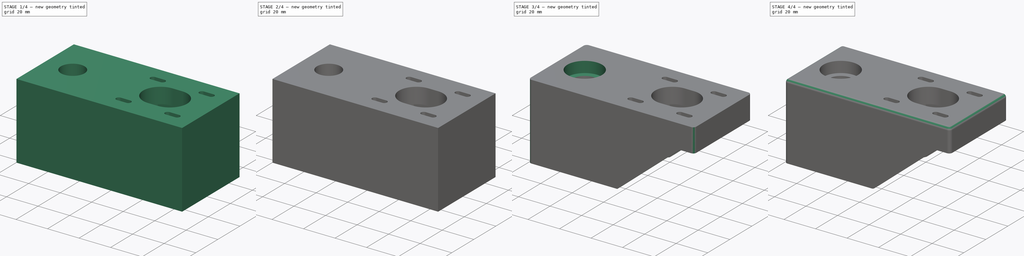
[diagram: build sequence overview — one tinted view per stage of 4, left to right]
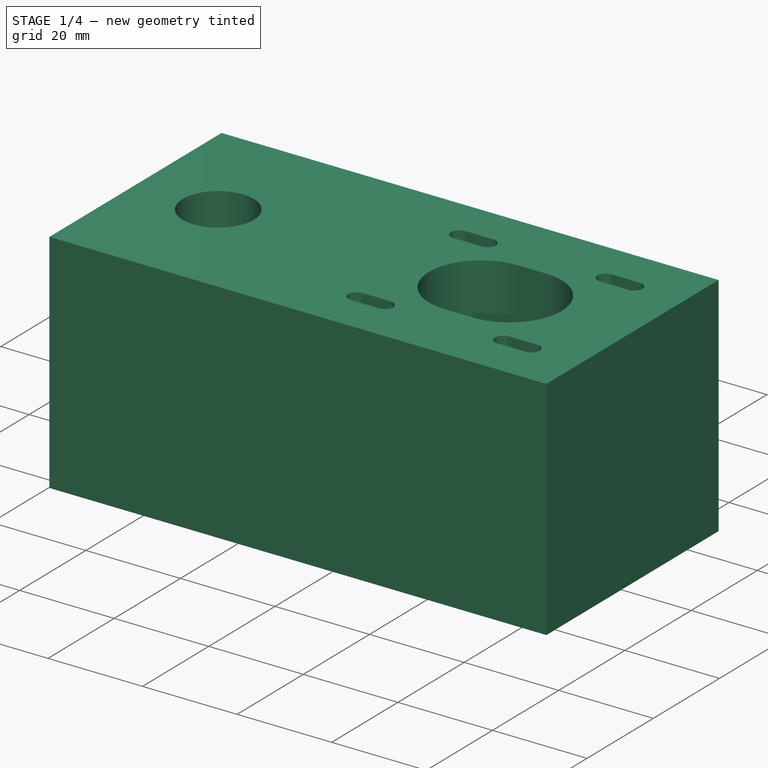
[diagram: stage 1 of 4 — iso view after this stage's code; geometry added in this stage tinted green]
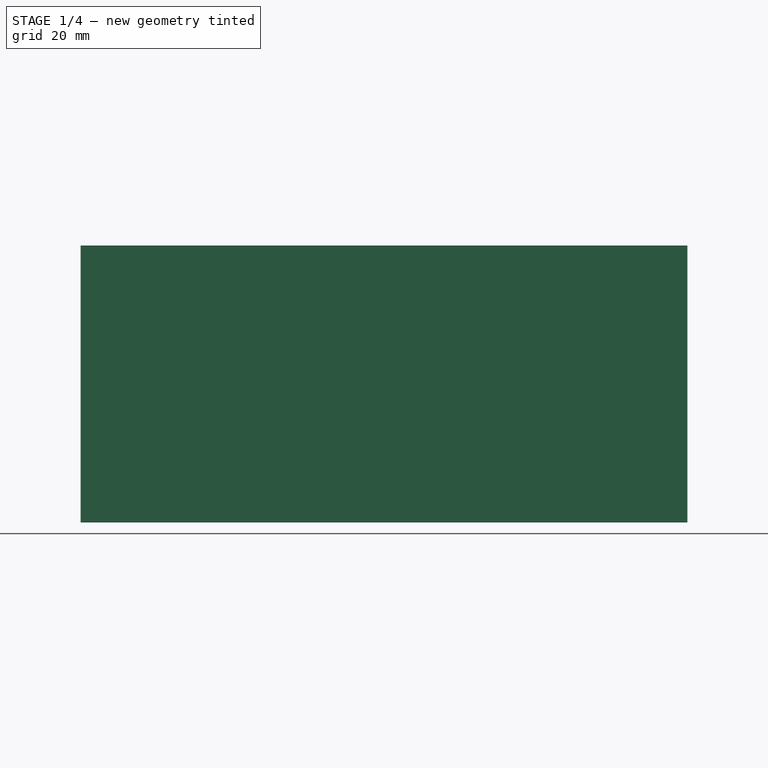
[diagram: stage 1 of 4 — front view after this stage's code; geometry added in this stage tinted green]
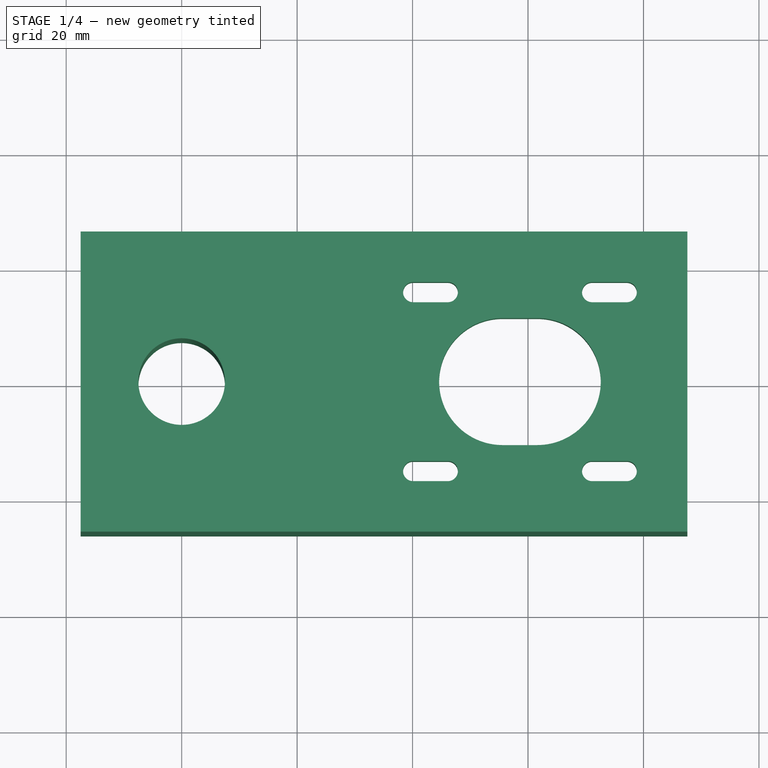
[diagram: stage 1 of 4 — top view after this stage's code; geometry added in this stage tinted green]
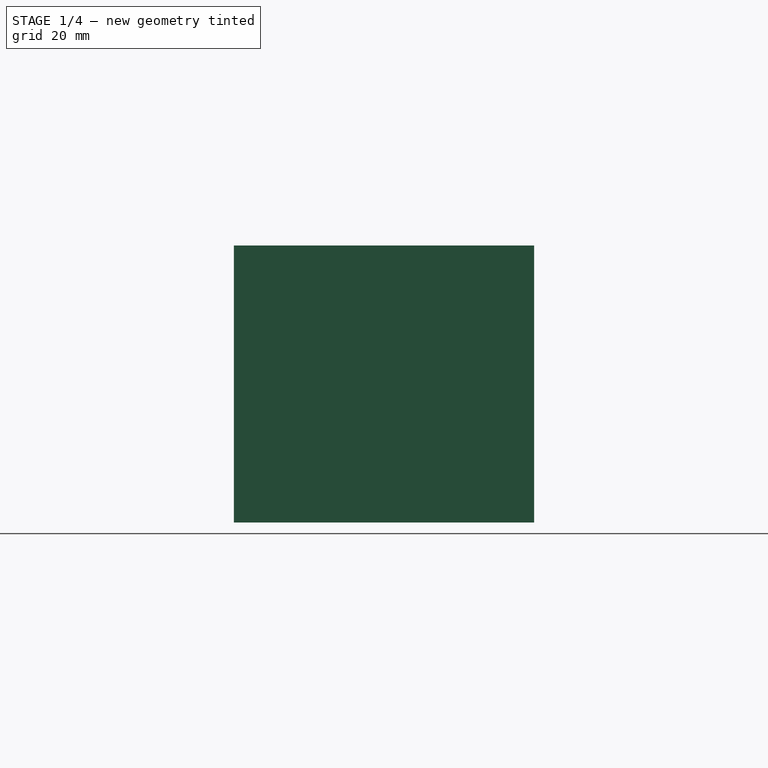
[diagram: stage 1 of 4 — right view after this stage's code; geometry added in this stage tinted green]
FCSTD DOCUMENT  (FreeCAD 0.21R33771 (Git))
Label: platform
License: All rights reserved
LicenseURL: http://en.wikipedia.org/wiki/All_rights_reserved
objects: Sketcher::SketchObject×6, PartDesign::Pocket×4, PartDesign::Fillet×3, PartDesign::Pad×1, PartDesign::Hole×1, PartDesign::Plane×1, PartDesign::Body×1
note: 26 computed .brp shape members not serialized (recipe doc carries the construction recipe); baked Part::Feature solids carry a one-line shape summary decoded from their .brp

FEATURE [Sketcher::SketchObject] Sketch  label="sketch_base"
  FullyConstrained = true
  MapMode = 5
  Support = -> [XY_Plane]
  sketch-geometry (73):
    g0: Circle CenterX=0 CenterY=0 CenterZ=0 NormalX=0 NormalY=0 NormalZ=1 AngleXU=0 Radius=7.5
    g1: LineSegment StartX=-17.5 StartY=26 StartZ=0 EndX=87.6 EndY=26 EndZ=0
    g2: LineSegment StartX=87.6 StartY=26 StartZ=0 EndX=87.6 EndY=-26 EndZ=0
    g3: LineSegment StartX=87.6 StartY=-26 StartZ=0 EndX=-17.5 EndY=-26 EndZ=0
    g4: LineSegment StartX=-17.5 StartY=-26 StartZ=0 EndX=-17.5 EndY=0 EndZ=0
    g5: LineSegment StartX=-17.5 StartY=0 StartZ=0 EndX=-17.5 EndY=26 EndZ=0
    g6: GeomPoint X=-7.5 Y=0 Z=0
    g7: GeomPoint X=87.6 Y=21 Z=0
    g8: GeomPoint X=87.6 Y=0 Z=0
    g9: GeomPoint X=58.6 Y=0 Z=0
    g10: LineSegment StartX=58.6 StartY=0 StartZ=0 EndX=58.6 EndY=11 EndZ=0
    g11: LineSegment StartX=58.6 StartY=0 StartZ=0 EndX=58.6 EndY=-11 EndZ=0
    g12: LineSegment StartX=61.6 StartY=11 StartZ=0 EndX=61.6 EndY=0 EndZ=0
    g13: LineSegment StartX=61.6 StartY=0 StartZ=0 EndX=61.6 EndY=-11 EndZ=0
    g14: LineSegment StartX=55.6 StartY=11 StartZ=0 EndX=55.6 EndY=0 EndZ=0
    g15: LineSegment StartX=55.6 StartY=0 StartZ=0 EndX=55.6 EndY=-11 EndZ=0
    g16: LineSegment StartX=55.6 StartY=11 StartZ=0 EndX=58.6 EndY=11 EndZ=0
    g17: LineSegment StartX=58.6 StartY=11 StartZ=0 EndX=61.6 EndY=11 EndZ=0
    g18: LineSegment StartX=55.6 StartY=-11 StartZ=0 EndX=58.6 EndY=-11 EndZ=0
    g19: LineSegment StartX=58.6 StartY=-11 StartZ=0 EndX=61.6 EndY=-11 EndZ=0
    g20: ArcOfCircle CenterX=55.6 CenterY=0 CenterZ=0 NormalX=0 NormalY=0 NormalZ=1 AngleXU=0 Radius=11 StartAngle=1.5708 EndAngle=4.71239
    g21: ArcOfCircle CenterX=61.6 CenterY=0 CenterZ=0 NormalX=0 NormalY=0 NormalZ=1 AngleXU=0 Radius=11 StartAngle=4.71239 EndAngle=7.85398
    g22: GeomPoint X=82.6 Y=-26 Z=0
    g23: LineSegment StartX=43.1 StartY=15.5 StartZ=0 EndX=74.1 EndY=15.5 EndZ=0
    g24: LineSegment StartX=74.1 StartY=15.5 StartZ=0 EndX=74.1 EndY=-15.5 EndZ=0
    g25: LineSegment StartX=74.1 StartY=-15.5 StartZ=0 EndX=43.1 EndY=-15.5 EndZ=0
    g26: LineSegment StartX=43.1 StartY=-15.5 StartZ=0 EndX=43.1 EndY=15.5 EndZ=0
    g27: LineSegment StartX=46.1 StartY=17.25 StartZ=0 EndX=46.1 EndY=15.5 EndZ=0
    g28: LineSegment StartX=46.1 StartY=15.5 StartZ=0 EndX=46.1 EndY=13.75 EndZ=0
    g29: LineSegment StartX=43.1 StartY=15.5 StartZ=0 EndX=40.1 EndY=15.5 EndZ=0
    g30: LineSegment StartX=40.1 StartY=15.5 StartZ=0 EndX=40.1 EndY=17.25 EndZ=0
    g31: LineSegment StartX=40.1 StartY=15.5 StartZ=0 EndX=40.1 EndY=13.75 EndZ=0
    g32: LineSegment StartX=40.1 StartY=17.25 StartZ=0 EndX=46.1 EndY=17.25 EndZ=0
    g33: LineSegment StartX=40.1 StartY=13.75 StartZ=0 EndX=43.1 EndY=13.75 EndZ=0
    g34: LineSegment StartX=43.1 StartY=13.75 StartZ=0 EndX=46.1 EndY=13.75 EndZ=0
    g35: ArcOfCircle CenterX=40.1 CenterY=15.5 CenterZ=0 NormalX=0 NormalY=0 NormalZ=1 AngleXU=0 Radius=1.75 StartAngle=1.5708 EndAngle=4.71239
    g36: ArcOfCircle CenterX=46.1 CenterY=15.5 CenterZ=0 NormalX=0 NormalY=0 NormalZ=1 AngleXU=0 Radius=1.75 StartAngle=4.71239 EndAngle=7.85398
    g37: LineSegment StartX=74.1 StartY=15.5 StartZ=0 EndX=74.1 EndY=17.25 EndZ=0
    g38: LineSegment StartX=74.1 StartY=17.25 StartZ=0 EndX=77.1 EndY=17.25 EndZ=0
    g39: LineSegment StartX=74.1 StartY=15.5 StartZ=0 EndX=77.1 EndY=15.5 EndZ=0
    g40: LineSegment StartX=77.1 StartY=15.5 StartZ=0 EndX=77.1 EndY=17.25 EndZ=0
    g41: LineSegment StartX=77.1 StartY=15.5 StartZ=0 EndX=77.1 EndY=13.75 EndZ=0
    g42: LineSegment StartX=77.1 StartY=13.75 StartZ=0 EndX=74.1 EndY=13.75 EndZ=0
    g43: LineSegment StartX=74.1 StartY=13.75 StartZ=0 EndX=71.1 EndY=13.75 EndZ=0
    g44: LineSegment StartX=71.1 StartY=13.75 StartZ=0 EndX=71.1 EndY=15.5 EndZ=0
    g45: LineSegment StartX=71.1 StartY=15.5 StartZ=0 EndX=71.1 EndY=17.25 EndZ=0
    g46: LineSegment StartX=71.1 StartY=17.25 StartZ=0 EndX=74.1 EndY=17.25 EndZ=0
    g47: ArcOfCircle CenterX=71.1 CenterY=15.5 CenterZ=0 NormalX=0 NormalY=0 NormalZ=1 AngleXU=0 Radius=1.75 StartAngle=1.5708 EndAngle=4.71239
    g48: ArcOfCircle CenterX=77.1 CenterY=15.5 CenterZ=0 NormalX=0 NormalY=0 NormalZ=1 AngleXU=0 Radius=1.75 StartAngle=4.71239 EndAngle=7.85398
    g49: LineSegment StartX=43.1 StartY=-15.5 StartZ=0 EndX=43.1 EndY=-17.25 EndZ=0
    g50: LineSegment StartX=43.1 StartY=-17.25 StartZ=0 EndX=46.1 EndY=-17.25 EndZ=0
    g51: LineSegment StartX=46.1 StartY=-17.25 StartZ=0 EndX=46.1 EndY=-15.5 EndZ=0
    g52: LineSegment StartX=46.1 StartY=-15.5 StartZ=0 EndX=46.1 EndY=-13.75 EndZ=0
    g53: LineSegment StartX=46.1 StartY=-13.75 StartZ=0 EndX=43.1 EndY=-13.75 EndZ=0
    g54: LineSegment StartX=43.1 StartY=-13.75 StartZ=0 EndX=40.1 EndY=-13.75 EndZ=0
    g55: LineSegment StartX=40.1 StartY=-13.75 StartZ=0 EndX=40.1 EndY=-15.5 EndZ=0
    g56: LineSegment StartX=40.1 StartY=-15.5 StartZ=0 EndX=43.1 EndY=-15.5 EndZ=0
    g57: LineSegment StartX=43.1 StartY=-17.25 StartZ=0 EndX=40.1 EndY=-17.25 EndZ=0
    g58: LineSegment StartX=40.1 StartY=-17.25 StartZ=0 EndX=40.1 EndY=-15.5 EndZ=0
    g59: ArcOfCircle CenterX=40.1 CenterY=-15.5 CenterZ=0 NormalX=0 NormalY=0 NormalZ=1 AngleXU=0 Radius=1.75 StartAngle=1.5708 EndAngle=4.71239
    g60: ArcOfCircle CenterX=46.1 CenterY=-15.5 CenterZ=0 NormalX=0 NormalY=0 NormalZ=1 AngleXU=0 Radius=1.75 StartAngle=4.71239 EndAngle=7.85398
    g61: LineSegment StartX=74.1 StartY=-13.75 StartZ=0 EndX=77.1 EndY=-13.75 EndZ=0
    g62: LineSegment StartX=77.1 StartY=-13.75 StartZ=0 EndX=77.1 EndY=-15.5 EndZ=0
    g63: LineSegment StartX=77.1 StartY=-15.5 StartZ=0 EndX=74.1 EndY=-15.5 EndZ=0
    g64: LineSegment StartX=74.1 StartY=-15.5 StartZ=0 EndX=74.1 EndY=-17.25 EndZ=0
    g65: LineSegment StartX=74.1 StartY=-17.25 StartZ=0 EndX=77.1 EndY=-17.25 EndZ=0
    g66: LineSegment StartX=77.1 StartY=-17.25 StartZ=0 EndX=77.1 EndY=-15.5 EndZ=0
    g67: LineSegment StartX=74.1 StartY=-17.25 StartZ=0 EndX=71.1 EndY=-17.25 EndZ=0
    g68: LineSegment StartX=71.1 StartY=-17.25 StartZ=0 EndX=71.1 EndY=-15.5 EndZ=0
    g69: LineSegment StartX=71.1 StartY=-15.5 StartZ=0 EndX=71.1 EndY=-13.75 EndZ=0
    g70: LineSegment StartX=71.1 StartY=-13.75 StartZ=0 EndX=74.1 EndY=-13.75 EndZ=0
    g71: ArcOfCircle CenterX=71.1 CenterY=-15.5 CenterZ=0 NormalX=0 NormalY=0 NormalZ=1 AngleXU=0 Radius=1.75 StartAngle=1.5708 EndAngle=4.71239
    g72: ArcOfCircle CenterX=77.1 CenterY=-15.5 CenterZ=0 NormalX=0 NormalY=0 NormalZ=1 AngleXU=0 Radius=1.75 StartAngle=4.71239 EndAngle=7.85398
  constraints (196):
    c: Coincident(g0,g-1)
    c: Coincident(g1,g2)
    c: Coincident(g2,g3)
    c: Coincident(g3,g4)
    c: Coincident(g5,g1)
    c: Horizontal(g1)
    c: Horizontal(g3)
    c: Vertical(g2)
    c: Diameter(g0) = 15
    c: Coincident(g4,g5)
    c: Vertical(g4)
    c: Vertical(g5)
    c: PointOnObject(g4,g-1)
    c: Equal(g5,g4)
    c: DistanceX(g1,g1) = 105.1
    c: DistanceY(g2,g2) = 52
    c: PointOnObject(g6,g0)
    c: PointOnObject(g6,g-1)
    c: DistanceX(g4,g6) = 10
    c: PointOnObject(g7,g2)
    c: PointOnObject(g8,g2)
    c: PointOnObject(g8,g-1)
    c: PointOnObject(g9,g-1)
    c: Coincident(g10,g9)
    c: Vertical(g10)
    c: Coincident(g11,g9)
    c: Vertical(g11)
    c: PointOnObject(g12,g-1)
    c: Vertical(g12)
    c: Coincident(g13,g12)
    c: Vertical(g13)
    c: PointOnObject(g14,g-1)
    c: Vertical(g14)
    c: Coincident(g15,g14)
    c: Vertical(g15)
    c: Coincident(g16,g14)
    c: Coincident(g16,g10)
    c: Horizontal(g16)
    c: Coincident(g17,g16)
    c: Coincident(g17,g12)
    c: Coincident(g18,g15)
    c: Coincident(g18,g11)
    c: Coincident(g19,g18)
    c: Coincident(g19,g13)
    c: Horizontal(g19)
    c: Horizontal(g18)
    c: Equal(g16,g17)
    c: DistanceX(g16,g16) = 3
    c: DistanceX(g0,g9) = 58.6
    c: DistanceY(g19,g17) = 22
    c: Coincident(g20,g14)
    c: Coincident(g20,g16)
    c: Coincident(g20,g18)
    c: Coincident(g21,g12)
    c: Coincident(g21,g17)
    c: Coincident(g21,g19)
    c: PointOnObject(g22,g3)
    c: DistanceX(g21,g22) = 21
    c: DistanceY(g8,g7) = 21
    c: DistanceY(g7,g1) = 5
    c: DistanceX(g22,g2) = 5
    c: Coincident(g23,g24)
    c: Coincident(g24,g25)
    c: Coincident(g25,g26)
    c: Coincident(g26,g23)
    c: Horizontal(g23)
    c: Horizontal(g25)
    c: Vertical(g24)
    c: Vertical(g26)
    c: Symmetric(g25,g23,g9)
    c: Equal(g23,g24)
    c: DistanceX(g23,g23) = 31
    c: PointOnObject(g27,g23)
    c: Vertical(g27)
    c: Coincident(g28,g27)
    c: Vertical(g28)
    c: Coincident(g29,g23)
    c: Horizontal(g29)
    c: Coincident(g30,g29)
    c: Vertical(g30)
    c: Coincident(g31,g29)
    c: Vertical(g31)
    c: Coincident(g32,g30)
    c: Coincident(g32,g27)
    c: Horizontal(g32)
    c: Coincident(g33,g31)
    c: PointOnObject(g33,g26)
    c: Horizontal(g33)
    c: Coincident(g34,g33)
    c: Coincident(g34,g28)
    c: Equal(g34,g33)
    c: DistanceX(g33,g33) = 3
    c: DistanceY(g33,g32) = 3.5
    c: Coincident(g35,g29)
    c: Coincident(g35,g33)
    c: Coincident(g35,g32)
    c: Coincident(g36,g27)
    c: Coincident(g36,g34)
    c: Coincident(g36,g32)
    c: Coincident(g37,g23)
    c: Vertical(g37)
    c: Coincident(g38,g37)
    c: Horizontal(g38)
    c: Coincident(g39,g23)
    c: Horizontal(g39)
    c: Coincident(g40,g39)
    c: Coincident(g40,g38)
    c: Vertical(g40)
    c: Coincident(g41,g39)
    c: Vertical(g41)
    c: Coincident(g42,g41)
    c: PointOnObject(g42,g24)
    c: Horizontal(g42)
    c: Coincident(g43,g42)
    c: Coincident(g44,g43)
    c: PointOnObject(g44,g23)
    c: Vertical(g44)
    c: Coincident(g45,g44)
    c: Vertical(g45)
    c: Coincident(g46,g45)
    c: Coincident(g46,g37)
    c: Horizontal(g46)
    c: Equal(g43,g42)
    c: DistanceX(g42,g42) = 3
    c: DistanceY(g41,g38) = 3.5
    c: Coincident(g47,g44)
    c: Coincident(g47,g43)
    c: Coincident(g47,g46)
    c: Coincident(g48,g39)
    c: Coincident(g48,g42)
    c: Coincident(g48,g38)
    c: Coincident(g49,g25)
    c: Vertical(g49)
    c: Coincident(g50,g49)
    c: Horizontal(g50)
    c: Coincident(g51,g50)
    c: PointOnObject(g51,g25)
    c: Vertical(g51)
    c: Coincident(g52,g51)
    c: Vertical(g52)
    c: Coincident(g53,g52)
    c: PointOnObject(g53,g26)
    c: Horizontal(g53)
    c: Coincident(g54,g53)
    c: Horizontal(g54)
    c: Coincident(g55,g54)
    c: Vertical(g55)
    c: Coincident(g56,g55)
    c: Coincident(g56,g25)
    c: Coincident(g57,g49)
    c: Horizontal(g57)
    c: Coincident(g58,g57)
    c: Coincident(g58,g55)
    c: Horizontal(g56)
    c: Vertical(g58)
    c: Equal(g57,g50)
    c: DistanceX(g57,g57) = 3
    c: DistanceY(g57,g54) = 3.5
    c: PointOnObject(g59,g55)
    c: Coincident(g59,g57)
    c: Coincident(g59,g54)
    c: Coincident(g60,g51)
    c: Coincident(g60,g50)
    c: Coincident(g60,g53)
    c: PointOnObject(g61,g24)
    c: Horizontal(g61)
    c: Coincident(g62,g61)
    c: Vertical(g62)
    c: Coincident(g63,g62)
    c: Coincident(g63,g24)
    c: Horizontal(g63)
    c: Coincident(g64,g24)
    c: Vertical(g64)
    c: Coincident(g65,g64)
    c: Horizontal(g65)
    c: Coincident(g66,g65)
    c: Coincident(g66,g62)
    c: Vertical(g66)
    c: Coincident(g67,g64)
    c: Horizontal(g67)
    c: Coincident(g68,g67)
    c: PointOnObject(g68,g25)
    c: Vertical(g68)
    c: Coincident(g69,g68)
    c: Vertical(g69)
    c: Coincident(g70,g69)
    c: Coincident(g70,g61)
    c: Equal(g67,g65)
    c: DistanceX(g65,g65) = 3
    c: DistanceY(g65,g61) = 3.5
    c: Coincident(g71,g68)
    c: Coincident(g71,g67)
    c: Coincident(g71,g70)
    c: Coincident(g72,g62)
    c: Coincident(g72,g61)
    c: Coincident(g72,g65)
FEATURE [PartDesign::Pad] Pad  label="pad_base"
  Direction = (0,0,1)
  Length = 48
  Length2 = 10
  Profile = -> Sketch
  ReferenceAxis = -> Sketch [N_Axis]
  Refine = true
  Type = 0
FEATURE [Sketcher::SketchObject] Sketch001  label="sketch_motor_emplacement"
  FullyConstrained = true
  MapMode = 5
  Support = -> [XY_Plane]
  sketch-geometry (28):
    g0: GeomPoint X=58.6 Y=0 Z=0
    g1: LineSegment StartX=61.6 StartY=21.5 StartZ=0 EndX=61.6 EndY=-21.5 EndZ=0
    g2: LineSegment StartX=58.6 StartY=21.5 StartZ=0 EndX=55.6 EndY=21.5 EndZ=0
    g3: LineSegment StartX=55.6 StartY=21.5 StartZ=0 EndX=55.6 EndY=-21.5 EndZ=0
    g4: LineSegment StartX=55.6 StartY=-21.5 StartZ=0 EndX=58.6 EndY=-21.5 EndZ=0
    g5: LineSegment StartX=55.6 StartY=-21.5 StartZ=0 EndX=55.6 EndY=21.5 EndZ=0
    g6: LineSegment StartX=58.6 StartY=-21.5 StartZ=0 EndX=58.6 EndY=0 EndZ=0
    g7: LineSegment StartX=58.6 StartY=0 StartZ=0 EndX=58.6 EndY=21.5 EndZ=0
    g8: LineSegment StartX=34.6 StartY=21.5 StartZ=0 EndX=34.6 EndY=17.2574 EndZ=0
    g9: LineSegment StartX=55.6 StartY=21.5 StartZ=0 EndX=38.8426 EndY=21.5 EndZ=0
    g10: LineSegment StartX=38.8426 StartY=21.5 StartZ=0 EndX=34.6 EndY=21.5 EndZ=0
    g11: LineSegment StartX=61.6 StartY=21.5 StartZ=0 EndX=78.3574 EndY=21.5 EndZ=0
    g12: LineSegment StartX=78.3574 StartY=21.5 StartZ=0 EndX=82.6 EndY=21.5 EndZ=0
    g13: LineSegment StartX=82.6 StartY=21.5 StartZ=0 EndX=82.6 EndY=17.2574 EndZ=0
    g14: LineSegment StartX=82.6 StartY=-21.5 StartZ=0 EndX=78.3574 EndY=-21.5 EndZ=0
    g15: LineSegment StartX=78.3574 StartY=-21.5 StartZ=0 EndX=61.6 EndY=-21.5 EndZ=0
    g16: LineSegment StartX=82.6 StartY=17.2574 StartZ=0 EndX=82.6 EndY=-17.2574 EndZ=0
    g17: LineSegment StartX=82.6 StartY=-17.2574 StartZ=0 EndX=82.6 EndY=-21.5 EndZ=0
    g18: LineSegment StartX=34.6 StartY=17.2574 StartZ=0 EndX=34.6 EndY=-17.2574 EndZ=0
    g19: LineSegment StartX=34.6 StartY=-17.2574 StartZ=0 EndX=34.6 EndY=-21.5 EndZ=0
    g20: LineSegment StartX=34.6 StartY=-21.5 StartZ=0 EndX=38.8426 EndY=-21.5 EndZ=0
    g21: LineSegment StartX=38.8426 StartY=-21.5 StartZ=0 EndX=55.6 EndY=-21.5 EndZ=0
    g22: LineSegment StartX=78.3574 StartY=21.5 StartZ=0 EndX=82.6 EndY=17.2574 EndZ=0
    g23: LineSegment StartX=34.6 StartY=17.2574 StartZ=0 EndX=38.8426 EndY=21.5 EndZ=0
    g24: LineSegment StartX=82.6 StartY=-17.2574 StartZ=0 EndX=78.3574 EndY=-21.5 EndZ=0
    g25: LineSegment StartX=38.8426 StartY=-21.5 StartZ=0 EndX=34.6 EndY=-17.2574 EndZ=0
    g26: LineSegment StartX=58.6 StartY=21.5 StartZ=0 EndX=61.6 EndY=21.5 EndZ=0
    g27: LineSegment StartX=58.6 StartY=-21.5 StartZ=0 EndX=61.6 EndY=-21.5 EndZ=0
  constraints (75):
    c: PointOnObject(g0,g-1)
    c: Vertical(g1)
    c: Coincident(g2,g3)
    c: Coincident(g3,g4)
    c: Coincident(g4,g6)
    c: Coincident(g7,g2)
    c: Horizontal(g2)
    c: Horizontal(g4)
    c: Vertical(g3)
    c: Coincident(g10,g8)
    c: Coincident(g19,g20)
    c: Coincident(g21,g5)
    c: Coincident(g5,g9)
    c: Coincident(g9,g2)
    c: Coincident(g21,g3)
    c: DistanceX(g10,g9) = 21
    c: Coincident(g12,g13)
    c: Coincident(g17,g14)
    c: Coincident(g15,g1)
    c: DistanceX(g11,g12) = 21
    c: DistanceY(g17,g13) = 43
    c: Coincident(g6,g7)
    c: Vertical(g6)
    c: Vertical(g7)
    c: Coincident(g6,g0)
    c: Equal(g6,g7)
    c: Coincident(g8,g18)
    c: Vertical(g8)
    c: Coincident(g9,g10)
    c: Horizontal(g9)
    c: Horizontal(g10)
    c: Coincident(g11,g12)
    c: Horizontal(g11)
    c: Horizontal(g12)
    c: Coincident(g13,g16)
    c: Vertical(g13)
    c: Coincident(g14,g15)
    c: Horizontal(g14)
    c: Horizontal(g15)
    c: Coincident(g16,g17)
    c: Vertical(g16)
    c: Vertical(g17)
    c: Coincident(g18,g19)
    c: Vertical(g18)
    c: Vertical(g19)
    c: Coincident(g20,g21)
    c: Horizontal(g20)
    c: Horizontal(g21)
    c: Coincident(g22,g11)
    c: Coincident(g23,g8)
    c: Coincident(g23,g9)
    c: Coincident(g24,g16)
    c: Coincident(g24,g14)
    c: Coincident(g25,g20)
    c: Coincident(g25,g18)
    c: Equal(g19,g20)
    c: Equal(g20,g10)
    c: Equal(g10,g8)
    c: Equal(g8,g13)
    c: Equal(g13,g12)
    c: Equal(g12,g14)
    c: Equal(g14,g17)
    c: Coincident(g22,g13)
    c: Distance(g23) = 6
    c: DistanceX(g-1,g16) = 82.6  'motor_back_x'
    c: Coincident(g26,g2)
    c: Coincident(g26,g11)
    c: Horizontal(g26)
    c: Coincident(g27,g4)
    c: Coincident(g27,g15)
    c: Horizontal(g27)
    c: Coincident(g1,g11)
    c: Equal(g26,g2)
    c: DistanceX(g2,g2) = 3
    c: DistanceX(g-1,g0) = 58.6
FEATURE [PartDesign::Pocket] Pocket  label="pocket_motor"
  BaseFeature = -> Pad
  Direction = (0,0,-1)
  Length = 38
  Length2 = 5
  Profile = -> Sketch001
  ReferenceAxis = -> Sketch001 [N_Axis]
  Refine = true
  Reversed = true
  Type = 0
  expr: Length = <<pad_base>>.Length - 10 mm
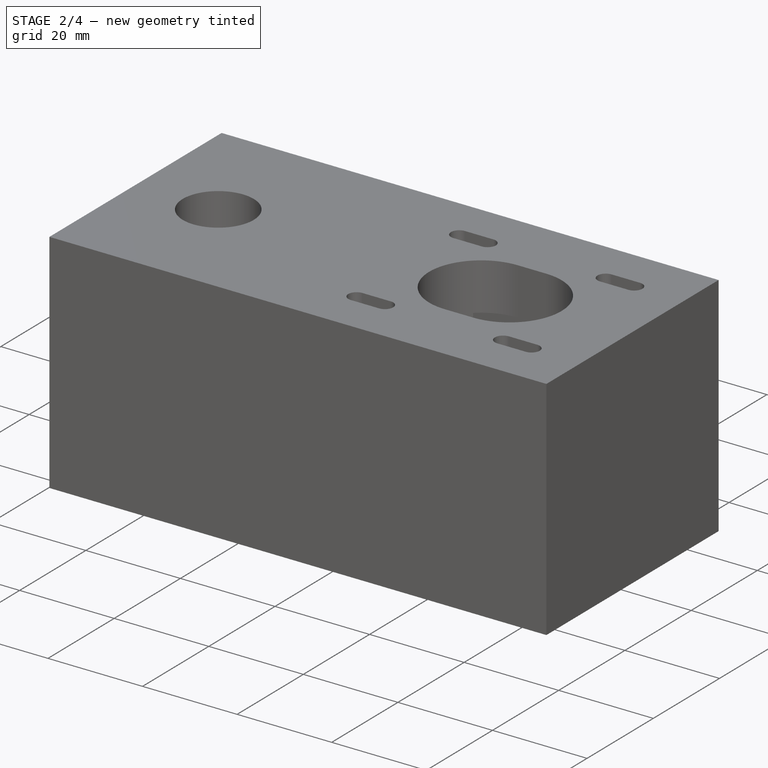
[diagram: stage 2 of 4 — iso view after this stage's code; geometry added in this stage tinted green]
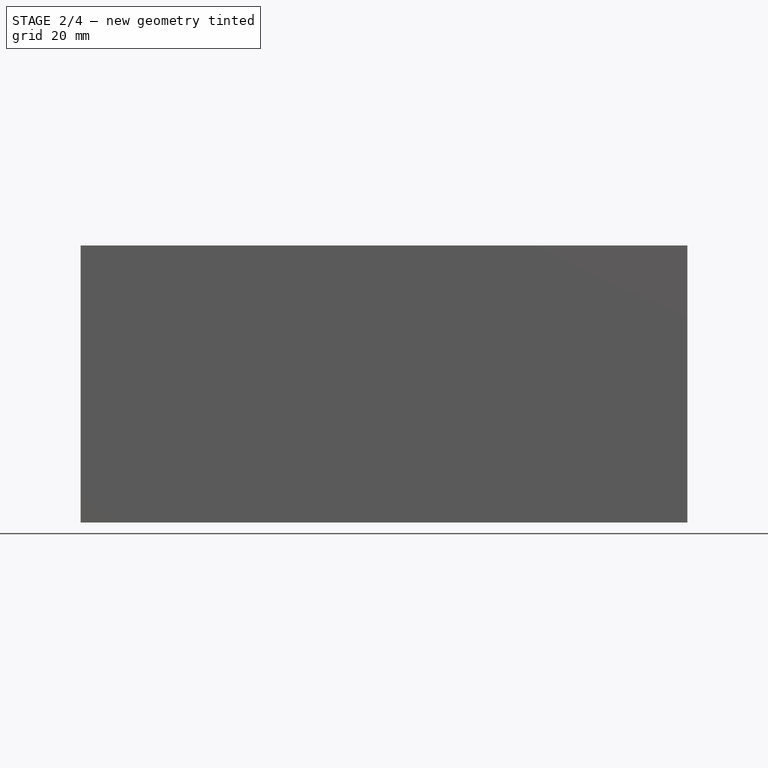
[diagram: stage 2 of 4 — front view after this stage's code; geometry added in this stage tinted green]
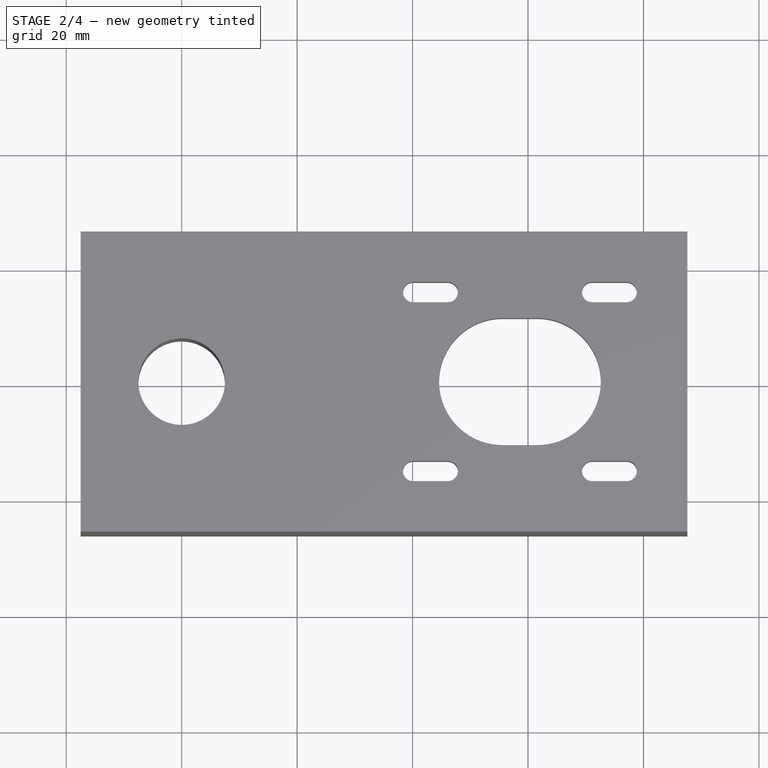
[diagram: stage 2 of 4 — top view after this stage's code; geometry added in this stage tinted green]
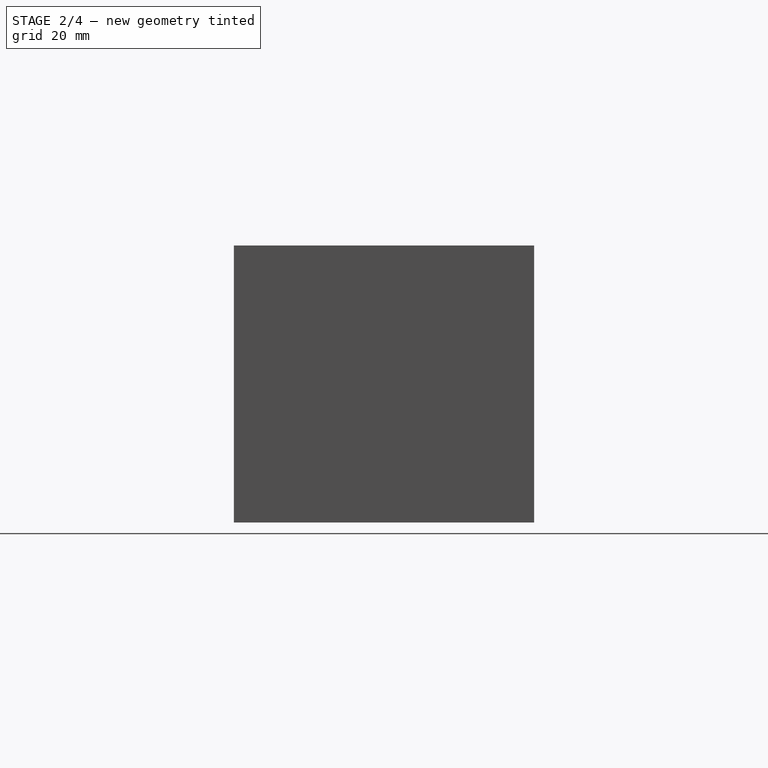
[diagram: stage 2 of 4 — right view after this stage's code; geometry added in this stage tinted green]
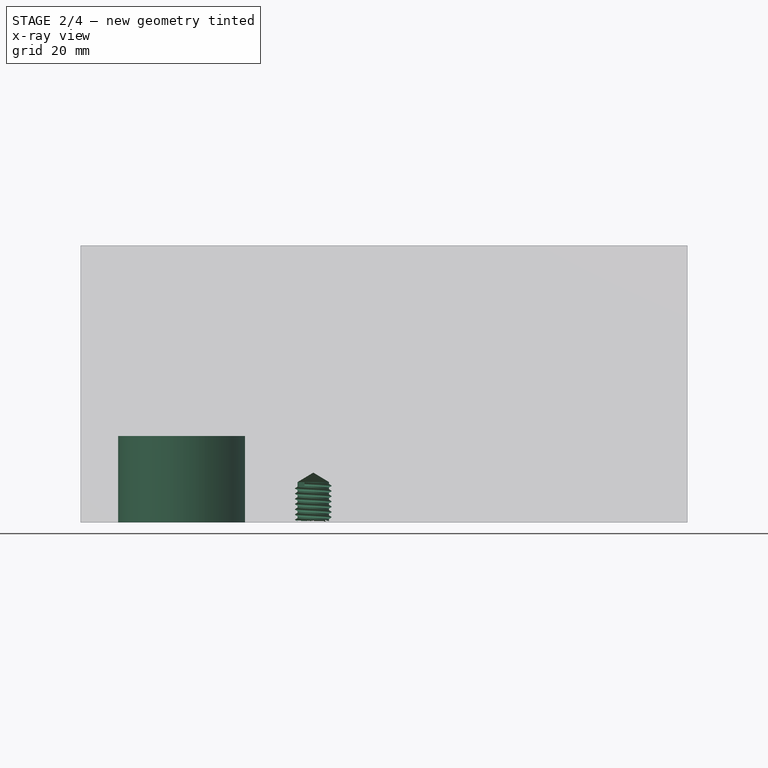
[diagram: stage 2 of 4 — x-ray composite at the front view; earlier geometry ghosted, this stage's added geometry solid]
FEATURE [Sketcher::SketchObject] Sketch002  label="sketch_bottom_bearing"
  FullyConstrained = true
  MapMode = 5
  Support = -> [XY_Plane]
  sketch-geometry (1):
    g0: Circle CenterX=0 CenterY=0 CenterZ=0 NormalX=0 NormalY=0 NormalZ=1 AngleXU=0 Radius=11
  constraints (2):
    c: Coincident(g0,g-1)
    c: Diameter(g0) = 22
FEATURE [PartDesign::Pocket] Pocket001  label="pocket_bottom_bearing"
  BaseFeature = -> Pocket
  Direction = (0,0,-1)
  Length = 15
  Length2 = 5
  Profile = -> Sketch002
  ReferenceAxis = -> Sketch002 [N_Axis]
  Refine = true
  Reversed = true
  Type = 0
FEATURE [Sketcher::SketchObject] Sketch003  label="sketch_mounting_hole"
  ExternalGeometry = -> [Pocket001]
  FullyConstrained = true
  MapMode = 5
  Support = -> [XY_Plane]
  sketch-geometry (3):
    g0: Circle CenterX=22.8 CenterY=0 CenterZ=0 NormalX=0 NormalY=0 NormalZ=1 AngleXU=0 Radius=3.175
    g1: GeomPoint X=34.6 Y=0 Z=0
    g2: GeomPoint X=11 Y=0 Z=0
  constraints (6):
    c: PointOnObject(g1,g-4)
    c: PointOnObject(g1,g-1)
    c: Diameter(g0) = 6.35
    c: PointOnObject(g2,g-3)
    c: PointOnObject(g2,g-1)
    c: Symmetric(g2,g1,g0)
FEATURE [PartDesign::Hole] Hole  label="mounting_hole"
  BaseFeature = -> Pocket001
  CustomThreadClearance = 0
  Depth = 7
  DepthType = 0
  Diameter = 5.5
  DrillForDepth = false
  DrillPoint = 1
  DrillPointAngle = 118
  HoleCutCountersinkAngle = 90
  HoleCutCustomValues = false
  HoleCutDepth = 0
  HoleCutDiameter = 6.1
  HoleCutType = 0
  ModelThread = true
  Profile = -> Sketch003
  Refine = true
  Reversed = true
  Tapered = false
  TaperedAngle = 90
  ThreadClass = 1
  ThreadDepth = 7
  ThreadDepthType = 0
  ThreadDirection = 0
  ThreadFit = 0
  ThreadSize = 10
  ThreadType = 4
  Threaded = true
  UseCustomThreadClearance = false
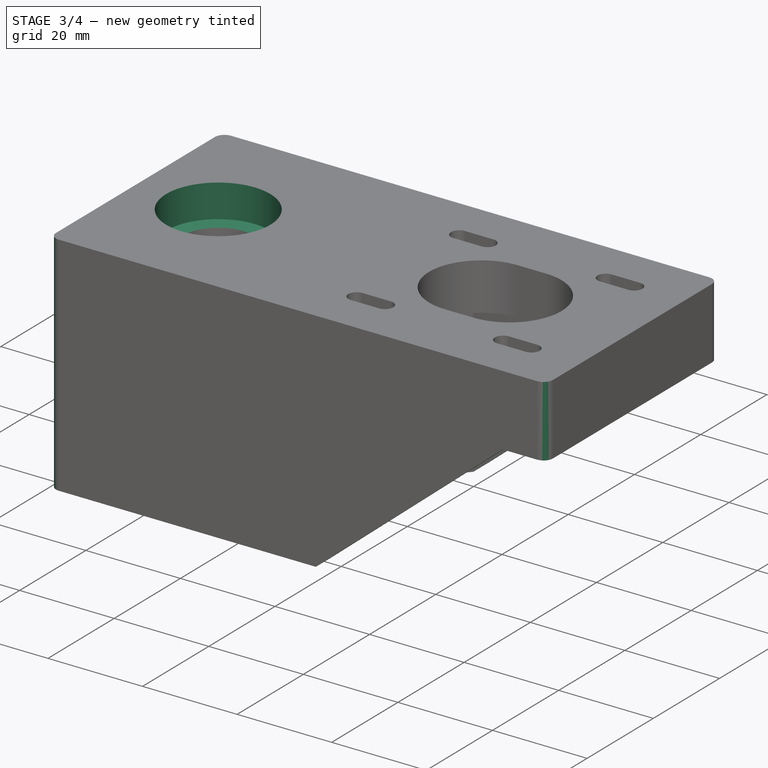
[diagram: stage 3 of 4 — iso view after this stage's code; geometry added in this stage tinted green]
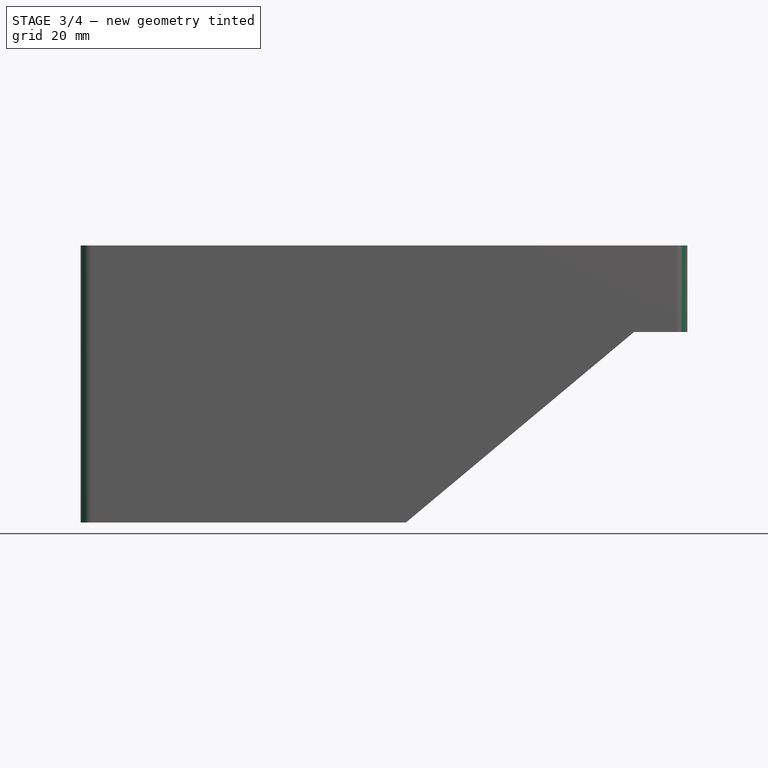
[diagram: stage 3 of 4 — front view after this stage's code; geometry added in this stage tinted green]
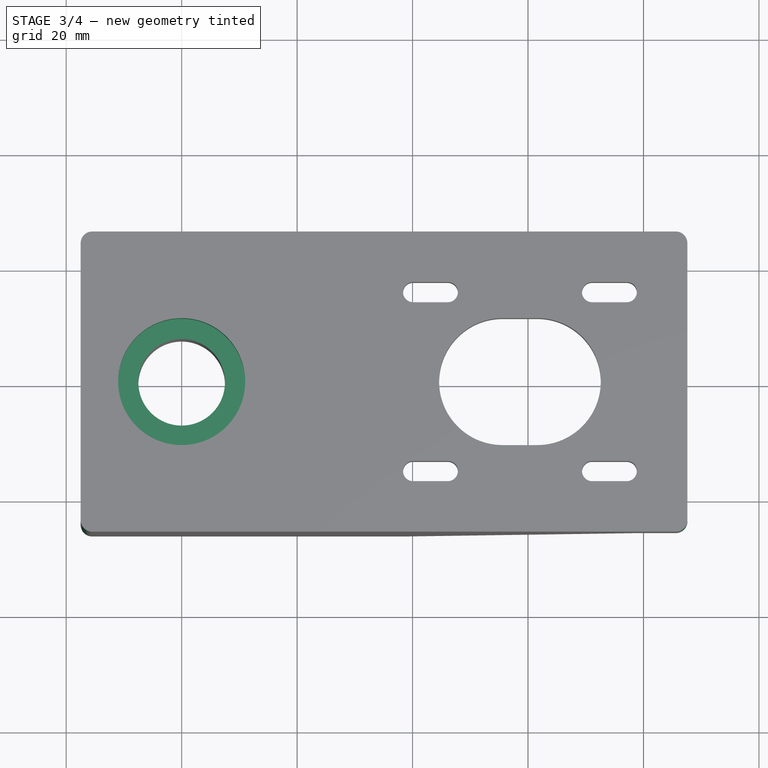
[diagram: stage 3 of 4 — top view after this stage's code; geometry added in this stage tinted green]
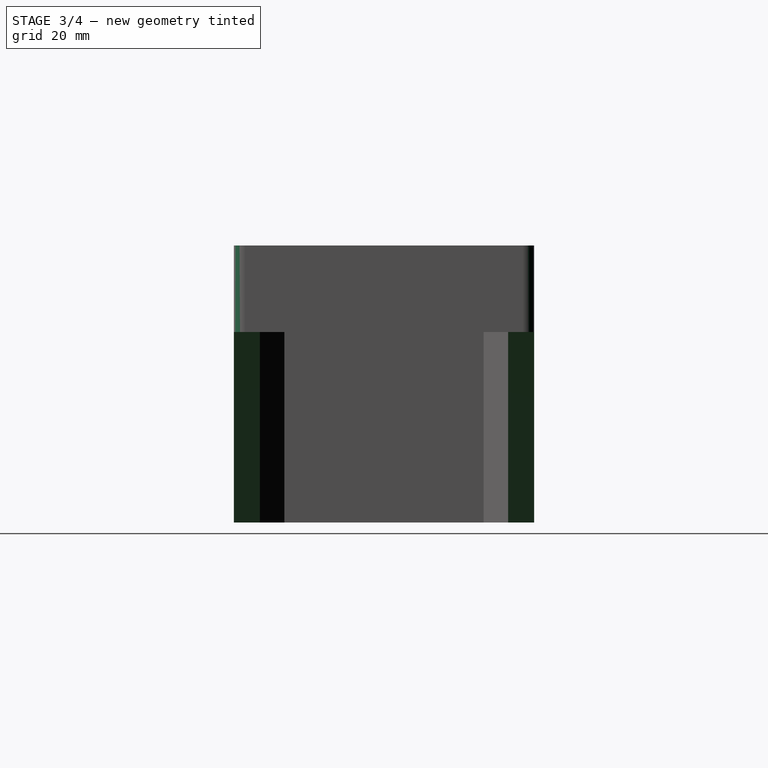
[diagram: stage 3 of 4 — right view after this stage's code; geometry added in this stage tinted green]
FEATURE [PartDesign::Plane] DatumPlane  label="plan_top"
  AttachmentOffset = pos=(0,0,48) rot=(0,0,1;0rad)
  Length = 60
  MapMode = 5
  Placement = pos=(0,0,48) rot=(0,0,1;0rad)
  ResizeMode = 0
  Support = -> [XY_Plane]
  Width = 60
  expr: .AttachmentOffset.Base.z = <<pad_base>>.Length
FEATURE [Sketcher::SketchObject] Sketch004  label="sketch_top_bearing"
  FullyConstrained = true
  MapMode = 5
  Placement = pos=(0,0,48) rot=(0,0,1;0rad)
  Support = -> [DatumPlane]
  sketch-geometry (1):
    g0: Circle CenterX=0 CenterY=0 CenterZ=0 NormalX=0 NormalY=0 NormalZ=1 AngleXU=0 Radius=11
  constraints (2):
    c: Coincident(g0,g-1)
    c: Diameter(g0) = 22
FEATURE [PartDesign::Pocket] Pocket002  label="pocket_top_bearing"
  BaseFeature = -> Hole
  Direction = (0,0,-1)
  Length = 7
  Length2 = 5
  Profile = -> Sketch004
  ReferenceAxis = -> Sketch004 [N_Axis]
  Refine = true
  Type = 0
FEATURE [Sketcher::SketchObject] Sketch005  label="sketch_motor_bevel"
  ExternalGeometry = -> [Pocket002]
  FullyConstrained = true
  MapMode = 5
  Placement = pos=(0,0,0) rot=(1,0,0;1.5708rad)
  Support = -> [XZ_Plane]
  sketch-geometry (5):
    g0: LineSegment StartX=87.6 StartY=33 StartZ=0 EndX=87.6 EndY=7.1e-15 EndZ=0
    g1: LineSegment StartX=87.6 StartY=33 StartZ=0 EndX=78.3574 EndY=33 EndZ=0
    g2: LineSegment StartX=78.3574 StartY=33 StartZ=0 EndX=38.8426 EndY=7.1e-15 EndZ=0
    g3: LineSegment StartX=38.8426 StartY=7.1e-15 StartZ=0 EndX=78.3574 EndY=4.8e-15 EndZ=0
    g4: LineSegment StartX=78.3574 StartY=4.8e-15 StartZ=0 EndX=87.6 EndY=7.1e-15 EndZ=0
  constraints (12):
    c: Coincident(g0,g-3)
    c: Vertical(g0)
    c: Coincident(g1,g0)
    c: PointOnObject(g1,g-5)
    c: Horizontal(g1)
    c: Coincident(g2,g1)
    c: DistanceY(g1,g-5) = 5
    c: Coincident(g3,g2)
    c: Coincident(g3,g-5)
    c: Coincident(g4,g3)
    c: Coincident(g4,g0)
    c: Coincident(g2,g-4)
FEATURE [PartDesign::Pocket] Pocket003  label="pocket_motor_bevel"
  BaseFeature = -> Pocket002
  Direction = (0,1,2e-16)
  Length = 5
  Length2 = 5
  Midplane = true
  Profile = -> Sketch005
  ReferenceAxis = -> Sketch005 [N_Axis]
  Refine = true
  Type = 1
FEATURE [PartDesign::Fillet] Fillet  label="fillet1"
  Base = -> Pocket003 [Edge53,Edge28,Edge4,Edge6]
  BaseFeature = -> Pocket003
  Radius = 2
  Refine = true
  SupportTransform = false
  UseAllEdges = false
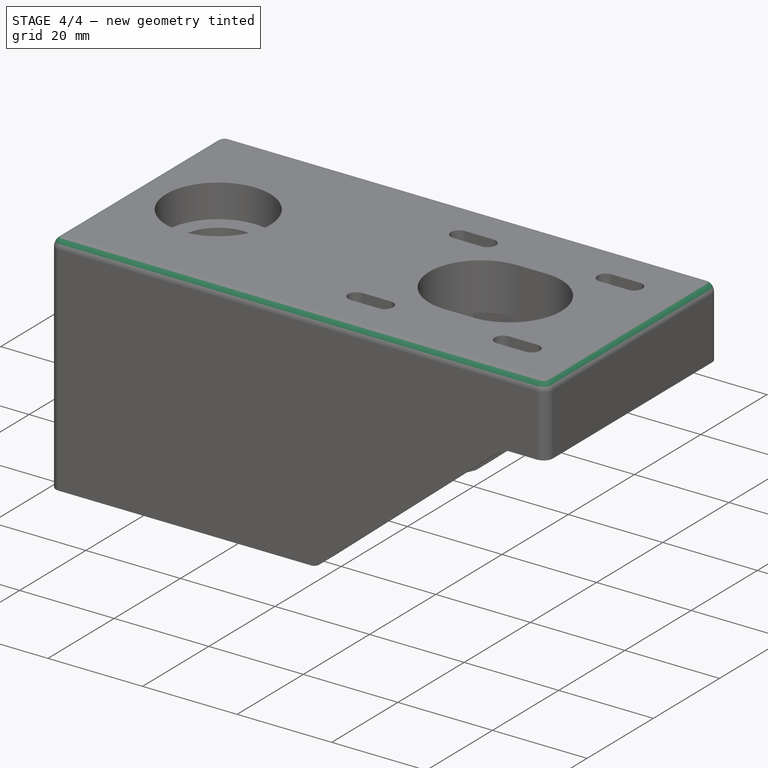
[diagram: stage 4 of 4 — iso view after this stage's code; geometry added in this stage tinted green]
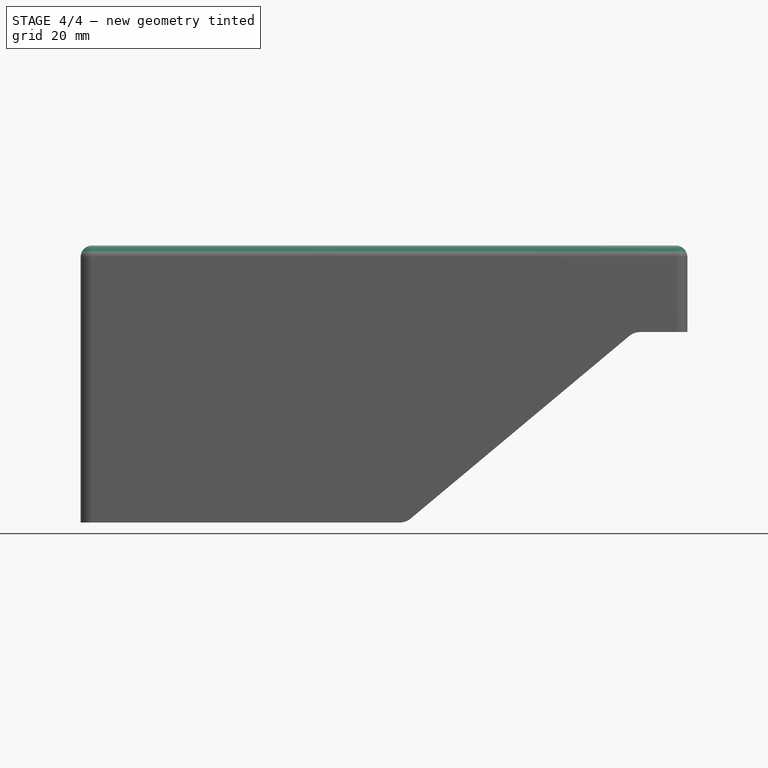
[diagram: stage 4 of 4 — front view after this stage's code; geometry added in this stage tinted green]
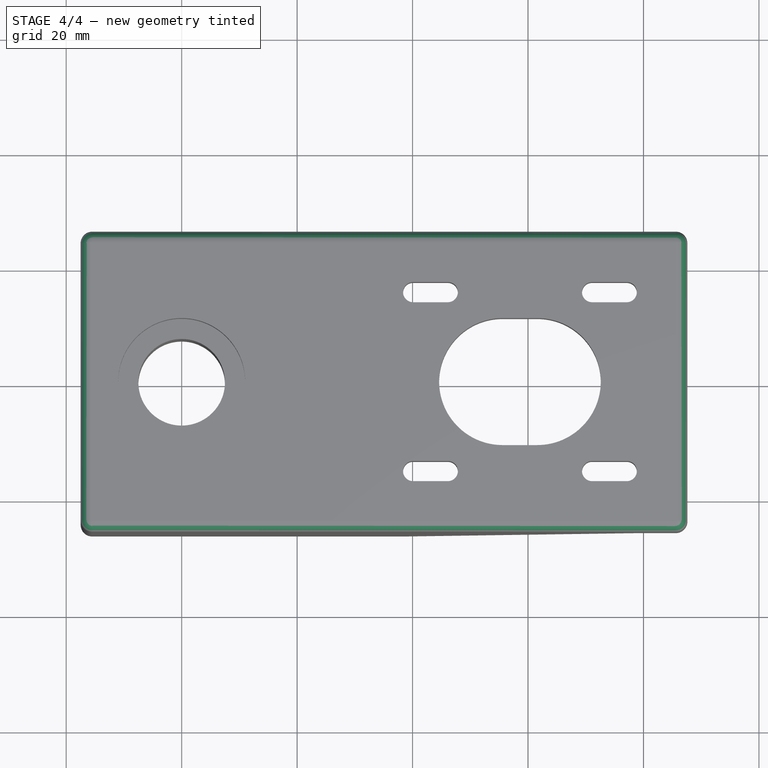
[diagram: stage 4 of 4 — top view after this stage's code; geometry added in this stage tinted green]
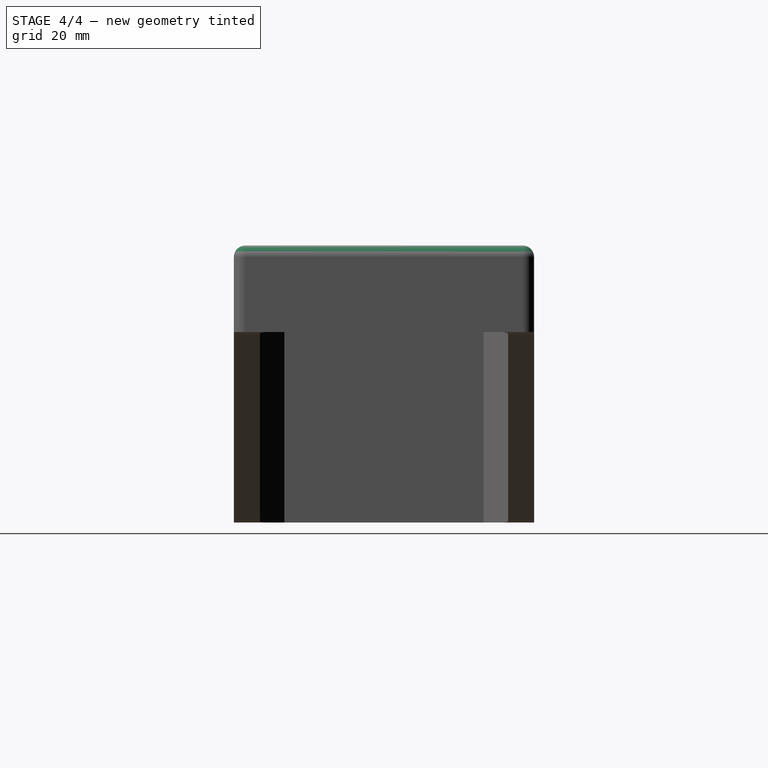
[diagram: stage 4 of 4 — right view after this stage's code; geometry added in this stage tinted green]
FEATURE [PartDesign::Fillet] Fillet001  label="fillet2"
  Base = -> Fillet [Edge30,Edge31,Edge28,Edge26,Edge4,Edge23,Edge27,Edge29]
  BaseFeature = -> Fillet
  Radius = 2
  Refine = true
  SupportTransform = false
  UseAllEdges = false
FEATURE [PartDesign::Fillet] Fillet002  label="fillet3"
  Base = -> Fillet001 [Edge13,Edge20,Edge34,Edge31]
  BaseFeature = -> Fillet001
  Radius = 3
  Refine = true
  SupportTransform = false
  UseAllEdges = false
FEATURE [PartDesign::Body] Body
  Group = -> [Sketch,Pad,Sketch001,Pocket,Sketch002,Pocket001,Sketch003,Hole,DatumPlane,Sketch004,Pocket002,Sketch005,Pocket003,Fillet,Fillet001,Fillet002]
  Origin = -> Origin
  Tip = -> Fillet002
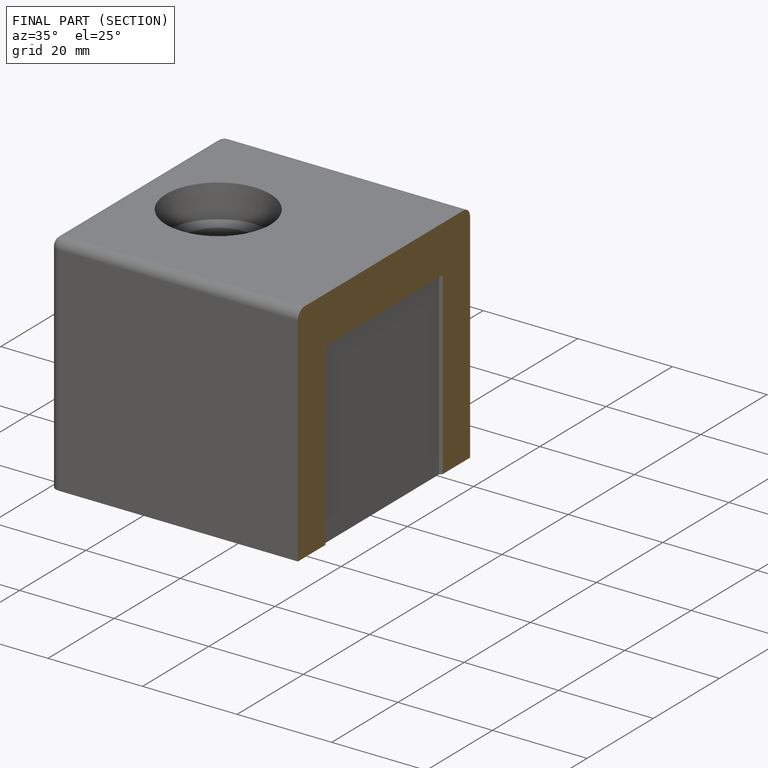
[diagram: finished part — half-section view (interior)]
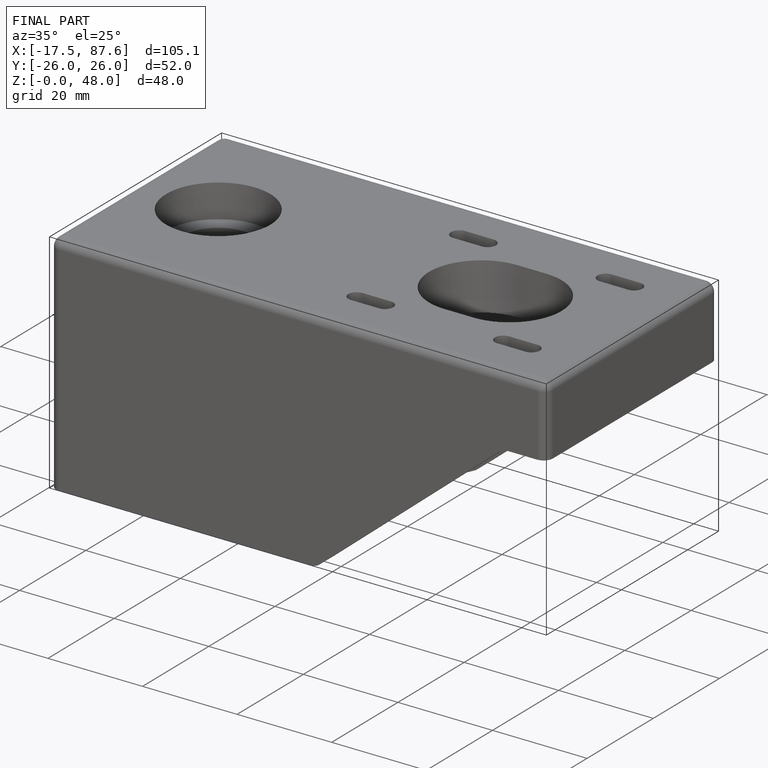
[diagram: finished part — iso view with bounding-box wireframe]
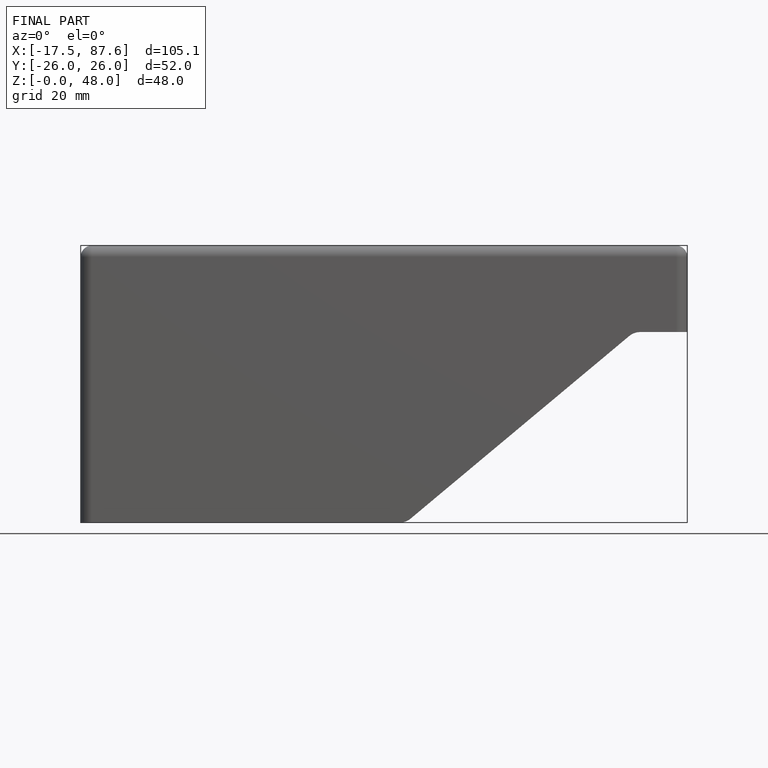
[diagram: finished part — front view with bounding-box wireframe]
